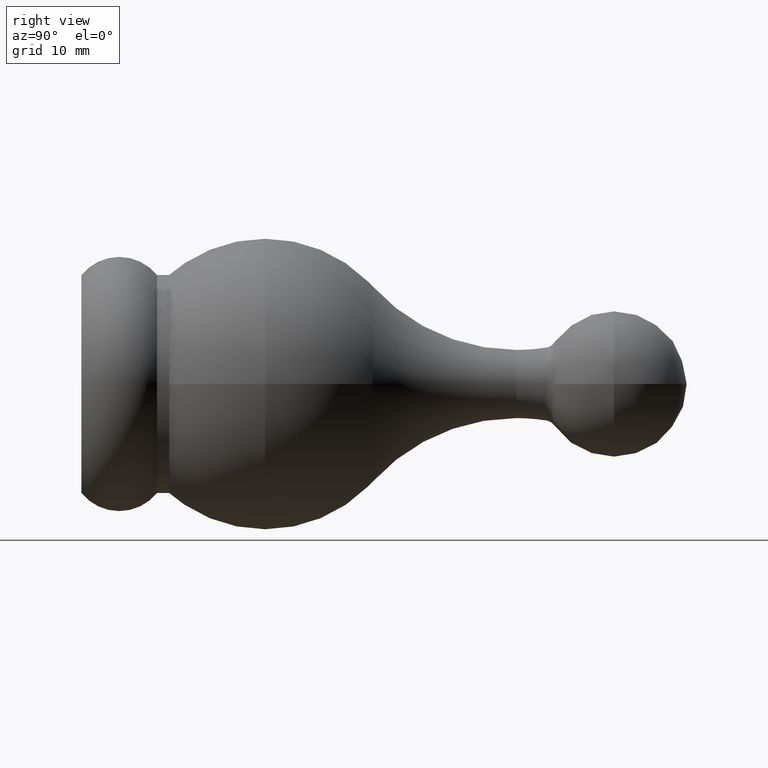
[diagram: clean part render]
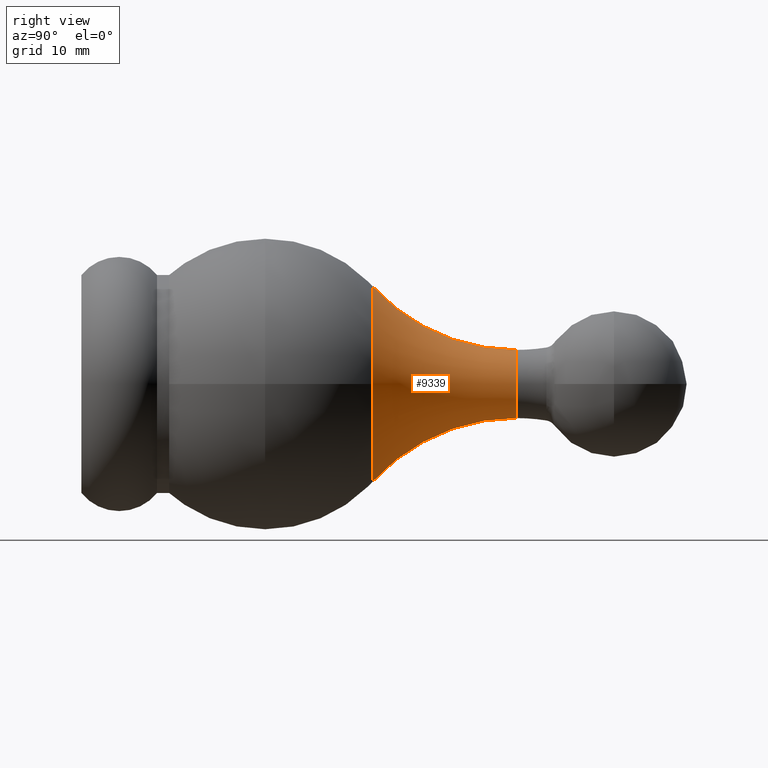
[diagram: same view with one face highlighted and labeled with its STEP entity id]
A machine part, right view. The second image highlights one B-rep face of the part: STEP entity #9339.
In plain terms, the highlighted toroidal blend (fillet) surface has major radius 18.8166 mm and minor (blend) radius 16 mm.
Its self-contained STEP definition (entity closure, byte-faithful):
#124 = CARTESIAN_POINT ( 'NONE',  ( 0.000000000000000000, 24.06862398283639237, 0.000000000000000000 ) ) ;
#177 = EDGE_CURVE ( 'NONE', #2715, #3247, #2696, .T. ) ;
#242 = FACE_OUTER_BOUND ( 'NONE', #4925, .T. ) ;
#398 = CIRCLE ( 'NONE', #8197, 2.816621483785176849 ) ;
#676 = DIRECTION ( 'NONE',  ( 0.000000000000000000, 0.000000000000000000, -1.000000000000000000 ) ) ;
#867 = DIRECTION ( 'NONE',  ( 1.000000000000000000, 0.000000000000000000, -1.224646799147353207E-16 ) ) ;
#935 = TOROIDAL_SURFACE ( 'NONE', #4830, 18.81662148378517685, 16.00000000000000000 ) ;
#2154 = CIRCLE ( 'NONE', #10164, 8.064266350193641131 ) ;
#2513 = CARTESIAN_POINT ( 'NONE',  ( 2.304371527088483740E-15, 35.91712005116201567, 18.81662148378517685 ) ) ;
#2690 = DIRECTION ( 'NONE',  ( -1.000000000000000000, 0.000000000000000000, 0.000000000000000000 ) ) ;
#2696 = CIRCLE ( 'NONE', #3914, 16.00000000000000000 ) ;
#2715 = VERTEX_POINT ( 'NONE', #11126 ) ;
#2899 = CIRCLE ( 'NONE', #6056, 8.064266350193641131 ) ;
#3247 = VERTEX_POINT ( 'NONE', #9711 ) ;
#3299 = EDGE_CURVE ( 'NONE', #8316, #5616, #2899, .T. ) ;
#3646 = ORIENTED_EDGE ( 'NONE', *, *, #8564, .T. ) ;
#3896 = DIRECTION ( 'NONE',  ( -0.000000000000000000, -1.000000000000000000, -0.000000000000000000 ) ) ;
#3914 = AXIS2_PLACEMENT_3D ( 'NONE', #2513, #867, #8661 ) ;
#4225 = CARTESIAN_POINT ( 'NONE',  ( 0.000000000000000000, 35.91712005116201567, 0.000000000000000000 ) ) ;
#4599 = DIRECTION ( 'NONE',  ( -0.000000000000000000, -1.000000000000000000, -0.000000000000000000 ) ) ;
#4822 = DIRECTION ( 'NONE',  ( 0.000000000000000000, 0.000000000000000000, -1.000000000000000000 ) ) ;
#4830 = AXIS2_PLACEMENT_3D ( 'NONE', #4225, #10283, #676 ) ;
#4925 = EDGE_LOOP ( 'NONE', ( #3646, #6984, #10484, #6997, #5583 ) ) ;
#5531 = CARTESIAN_POINT ( 'NONE',  ( 8.064266350193641131, 24.06862398283639237, 0.000000000000000000 ) ) ;
#5583 = ORIENTED_EDGE ( 'NONE', *, *, #3299, .F. ) ;
#5616 = VERTEX_POINT ( 'NONE', #5531 ) ;
#6056 = AXIS2_PLACEMENT_3D ( 'NONE', #124, #4599, #7129 ) ;
#6081 = DIRECTION ( 'NONE',  ( -0.000000000000000000, -1.000000000000000000, -0.000000000000000000 ) ) ;
#6984 = ORIENTED_EDGE ( 'NONE', *, *, #7688, .T. ) ;
#6997 = ORIENTED_EDGE ( 'NONE', *, *, #10572, .F. ) ;
#7057 = CARTESIAN_POINT ( 'NONE',  ( 0.000000000000000000, 35.91712005116201567, -18.81662148378517685 ) ) ;
#7129 = DIRECTION ( 'NONE',  ( 0.000000000000000000, 0.000000000000000000, -1.000000000000000000 ) ) ;
#7688 = EDGE_CURVE ( 'NONE', #8330, #3247, #398, .T. ) ;
#8197 = AXIS2_PLACEMENT_3D ( 'NONE', #9133, #3896, #4822 ) ;
#8316 = VERTEX_POINT ( 'NONE', #8871 ) ;
#8330 = VERTEX_POINT ( 'NONE', #10588 ) ;
#8564 = EDGE_CURVE ( 'NONE', #8316, #8330, #10612, .T. ) ;
#8661 = DIRECTION ( 'NONE',  ( -1.224646799147353207E-16, 0.000000000000000000, -1.000000000000000000 ) ) ;
#8871 = CARTESIAN_POINT ( 'NONE',  ( 0.000000000000000000, 24.06862398283639237, -8.064266350193641131 ) ) ;
#9133 = CARTESIAN_POINT ( 'NONE',  ( 0.000000000000000000, 35.91712005116201567, 0.000000000000000000 ) ) ;
#9339 = ADVANCED_FACE ( 'NONE', ( #242 ), #935, .F. ) ;
#9703 = AXIS2_PLACEMENT_3D ( 'NONE', #7057, #2690, #10653 ) ;
#9711 = CARTESIAN_POINT ( 'NONE',  ( 3.449366484527188053E-16, 35.91712005116201567, 2.816621483785176849 ) ) ;
#10164 = AXIS2_PLACEMENT_3D ( 'NONE', #10347, #6081, #10306 ) ;
#10283 = DIRECTION ( 'NONE',  ( -0.000000000000000000, -1.000000000000000000, -0.000000000000000000 ) ) ;
#10306 = DIRECTION ( 'NONE',  ( 0.000000000000000000, 0.000000000000000000, -1.000000000000000000 ) ) ;
#10347 = CARTESIAN_POINT ( 'NONE',  ( 0.000000000000000000, 24.06862398283639237, 0.000000000000000000 ) ) ;
#10484 = ORIENTED_EDGE ( 'NONE', *, *, #177, .F. ) ;
#10572 = EDGE_CURVE ( 'NONE', #5616, #2715, #2154, .T. ) ;
#10588 = CARTESIAN_POINT ( 'NONE',  ( 0.000000000000000000, 35.91712005116201567, -2.816621483785176849 ) ) ;
#10612 = CIRCLE ( 'NONE', #9703, 16.00000000000000000 ) ;
#10653 = DIRECTION ( 'NONE',  ( 0.000000000000000000, 0.000000000000000000, 1.000000000000000000 ) ) ;
#11126 = CARTESIAN_POINT ( 'NONE',  ( 9.875877973236350995E-16, 24.06862398283639237, 8.064266350193641131 ) ) ;